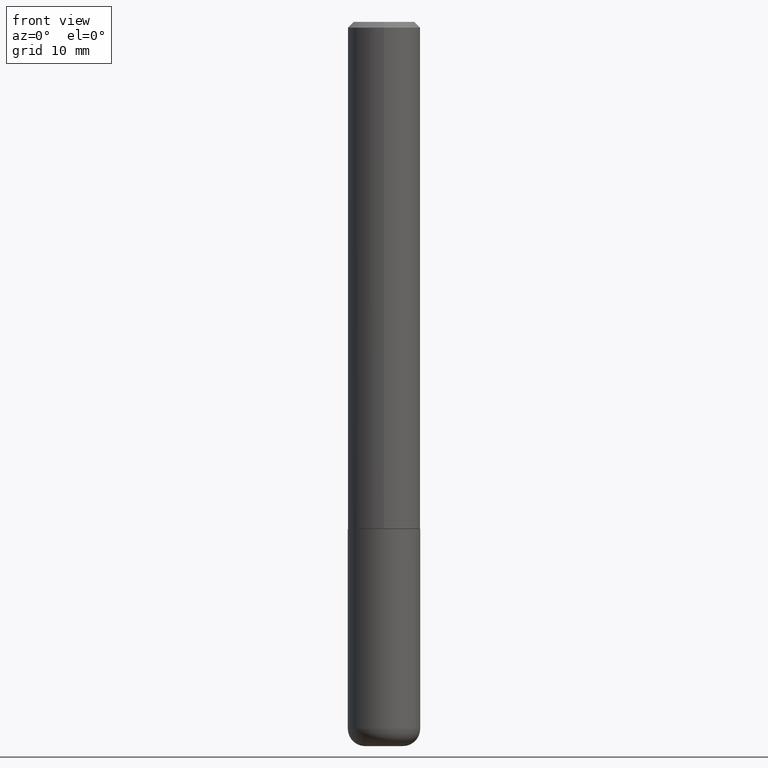
[diagram: clean part render]
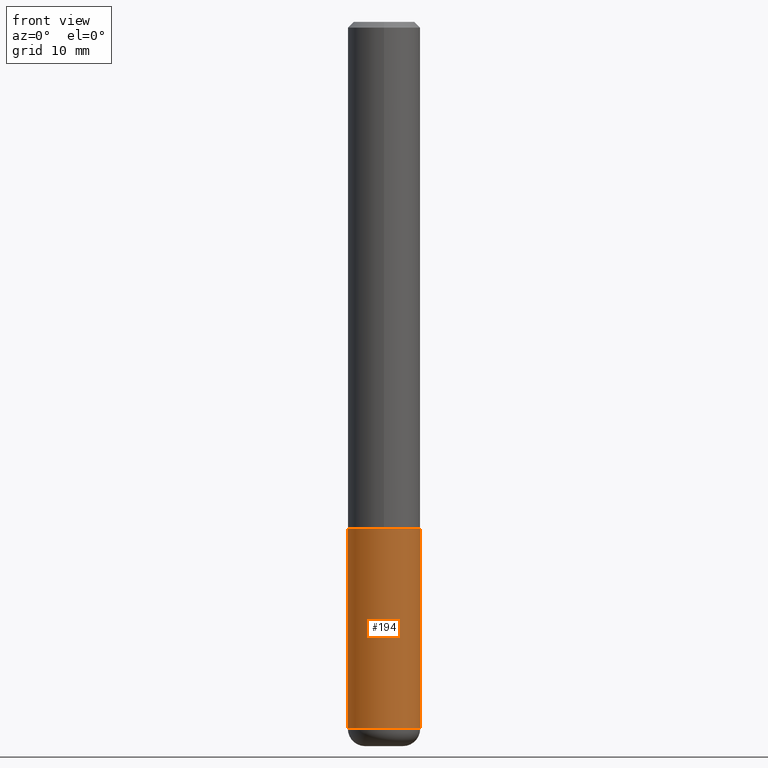
[diagram: same view with one face highlighted and labeled with its STEP entity id]
A machine part, front view. The second image highlights one B-rep face of the part: STEP entity #194.
In plain terms, the highlighted cylindrical surface (edge-blend (fillet) strip) has radius 3.175 mm, axis along (-0, 0, 1).
Its self-contained STEP definition (entity closure, byte-faithful):
#11 = FACE_OUTER_BOUND ( 'NONE', #130, .T. ) ;
#12 = ORIENTED_EDGE ( 'NONE', *, *, #404, .F. ) ;
#23 = AXIS2_PLACEMENT_3D ( 'NONE', #417, #126, #132 ) ;
#32 = DIRECTION ( 'NONE',  ( -2.445468806185136877E-29, 3.491481338843145188E-15, 1.000000000000000000 ) ) ;
#36 = VERTEX_POINT ( 'NONE', #296 ) ;
#54 = ORIENTED_EDGE ( 'NONE', *, *, #411, .F. ) ;
#65 = CARTESIAN_POINT ( 'NONE',  ( -0.1250000000000000000, 8.881784197001252323E-16, -6.148668862818632227E-30 ) ) ;
#68 = CARTESIAN_POINT ( 'NONE',  ( 0.1249999999999999861, -9.392084801488058387E-15, -2.440000000000000391 ) ) ;
#85 = AXIS2_PLACEMENT_3D ( 'NONE', #249, #98, #152 ) ;
#98 = DIRECTION ( 'NONE',  ( -2.445468806185136597E-29, 3.491481338843145583E-15, 1.000000000000000000 ) ) ;
#105 = DIRECTION ( 'NONE',  ( -2.445468806185136877E-29, 3.491481338843145188E-15, 1.000000000000000000 ) ) ;
#125 = CARTESIAN_POINT ( 'NONE',  ( -0.1250000000000000000, -6.426474985176265022E-15, -1.750000000000000222 ) ) ;
#126 = DIRECTION ( 'NONE',  ( -2.445468806185136597E-29, 3.491481338843145583E-15, 1.000000000000000000 ) ) ;
#130 = EDGE_LOOP ( 'NONE', ( #12, #304, #244, #54 ) ) ;
#132 = DIRECTION ( 'NONE',  ( 1.000000000000000000, -6.982962677686262766E-15, 0.000000000000000000 ) ) ;
#152 = DIRECTION ( 'NONE',  ( 1.000000000000000000, -6.982962677686262766E-15, 0.000000000000000000 ) ) ;
#159 = CARTESIAN_POINT ( 'NONE',  ( 0.1250000000000000000, -8.728703347107833388E-16, 6.095220969744919741E-30 ) ) ;
#164 = CARTESIAN_POINT ( 'NONE',  ( 0.000000000000000000, 0.000000000000000000, 0.000000000000000000 ) ) ;
#165 = VERTEX_POINT ( 'NONE', #125 ) ;
#170 = EDGE_CURVE ( 'NONE', #310, #185, #398, .T. ) ;
#185 = VERTEX_POINT ( 'NONE', #68 ) ;
#194 = ADVANCED_FACE ( 'NONE', ( #11 ), #251, .T. ) ;
#195 = DIRECTION ( 'NONE',  ( -2.445468806185136597E-29, 3.491481338843145583E-15, 1.000000000000000000 ) ) ;
#210 = AXIS2_PLACEMENT_3D ( 'NONE', #164, #195, #319 ) ;
#226 = EDGE_CURVE ( 'NONE', #185, #36, #393, .T. ) ;
#230 = CARTESIAN_POINT ( 'NONE',  ( -0.1249999999999999861, -7.631036047077151393E-15, -2.440000000000000391 ) ) ;
#239 = CIRCLE ( 'NONE', #23, 0.1250000000000000000 ) ;
#244 = ORIENTED_EDGE ( 'NONE', *, *, #226, .T. ) ;
#249 = CARTESIAN_POINT ( 'NONE',  ( 5.966943887091733341E-29, -8.519214466777275048E-15, -2.440000000000000391 ) ) ;
#251 = CYLINDRICAL_SURFACE ( 'NONE', #210, 0.1250000000000000000 ) ;
#272 = VECTOR ( 'NONE', #105, 39.37007874015748143 ) ;
#296 = CARTESIAN_POINT ( 'NONE',  ( 0.1250000000000000000, -6.982962677686288010E-15, -1.750000000000000222 ) ) ;
#304 = ORIENTED_EDGE ( 'NONE', *, *, #170, .T. ) ;
#310 = VERTEX_POINT ( 'NONE', #230 ) ;
#319 = DIRECTION ( 'NONE',  ( 1.000000000000000000, -6.982962677686266711E-15, 4.876176775795935793E-29 ) ) ;
#323 = VECTOR ( 'NONE', #32, 39.37007874015748143 ) ;
#388 = LINE ( 'NONE', #65, #323 ) ;
#393 = LINE ( 'NONE', #159, #272 ) ;
#398 = CIRCLE ( 'NONE', #85, 0.1250000000000000000 ) ;
#404 = EDGE_CURVE ( 'NONE', #310, #165, #388, .T. ) ;
#411 = EDGE_CURVE ( 'NONE', #165, #36, #239, .T. ) ;
#417 = CARTESIAN_POINT ( 'NONE',  ( 4.279570410823989044E-29, -6.110092342975505460E-15, -1.750000000000000222 ) ) ;